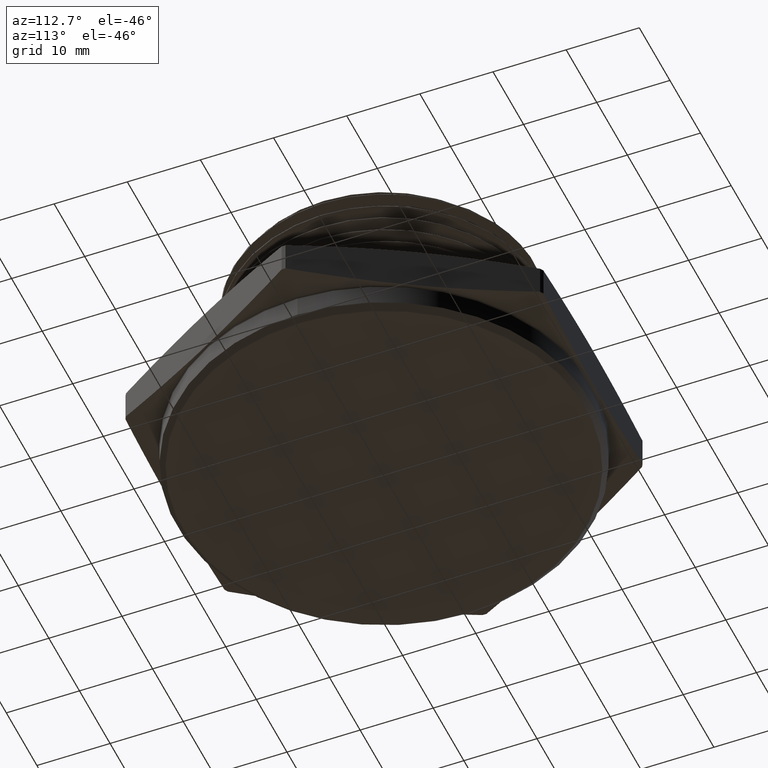
[diagram: clean part render]
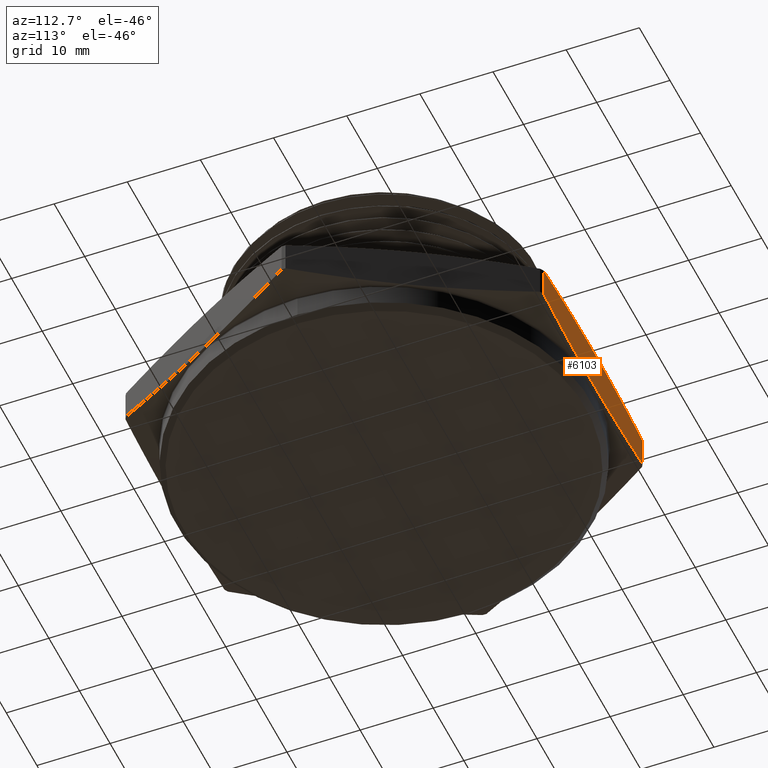
[diagram: same view with one face highlighted and labeled with its STEP entity id]
A machine part, auxiliary view. The second image highlights one B-rep face of the part: STEP entity #6103.
In plain terms, the highlighted planar face has unit normal (0, -1, 0).
Its self-contained STEP definition (entity closure, byte-faithful):
#199 = LINE ( 'NONE', #6695, #201 ) ;
#201 = VECTOR ( 'NONE', #6696, 39.37007874015748100 ) ;
#204 = LINE ( 'NONE', #6709, #207 ) ;
#207 = VECTOR ( 'NONE', #6710, 39.37007874015748100 ) ;
#247 = B_SPLINE_CURVE_WITH_KNOTS ( 'NONE', 3,
 ( #4721, #4722, #4726, #4727, #4728, #4729, #4730, #4731, #4732, #4733 ),
 .UNSPECIFIED., .F., .F.,
 ( 4, 2, 2, 2, 4 ),
 ( 0.02769100706627817800, 0.03581872669892850700, 0.04394644633157883400, 0.05207416596422916700, 0.06020188559687950100 ),
 .UNSPECIFIED. ) ;
#250 = B_SPLINE_CURVE_WITH_KNOTS ( 'NONE', 3,
 ( #4768, #4769, #4774, #4775, #4776, #4777, #4778, #4779, #4780, #4781 ),
 .UNSPECIFIED., .F., .F.,
 ( 4, 2, 2, 2, 4 ),
 ( 0.06266755112108940400, 0.07078731948426066100, 0.07890708784743191700, 0.08702685621060316000, 0.09514662457377441600 ),
 .UNSPECIFIED. ) ;
#832 = PLANE ( 'NONE',  #4649 ) ;
#833 = CARTESIAN_POINT ( 'NONE',  ( 0.6495190528383286700, 1.125000000000000200, 0.2399999999999999900 ) ) ;
#838 = DIRECTION ( 'NONE',  ( 0.0000000000000000000, -1.000000000000000000, 0.0000000000000000000 ) ) ;
#839 = DIRECTION ( 'NONE',  ( 0.0000000000000000000, -0.0000000000000000000, -1.000000000000000000 ) ) ;
#1003 = FACE_OUTER_BOUND ( 'NONE', #5999, .T. ) ;
#4182 = VERTEX_POINT ( 'NONE', #7625 ) ;
#4205 = VERTEX_POINT ( 'NONE', #7646 ) ;
#4208 = VERTEX_POINT ( 'NONE', #7649 ) ;
#4210 = VERTEX_POINT ( 'NONE', #7651 ) ;
#4350 = ORIENTED_EDGE ( 'NONE', *, *, #4524, .T. ) ;
#4351 = ORIENTED_EDGE ( 'NONE', *, *, #6046, .T. ) ;
#4352 = ORIENTED_EDGE ( 'NONE', *, *, #4514, .T. ) ;
#4353 = ORIENTED_EDGE ( 'NONE', *, *, #6043, .T. ) ;
#4514 = EDGE_CURVE ( 'NONE', #4208, #4210, #247, .T. ) ;
#4524 = EDGE_CURVE ( 'NONE', #4182, #4205, #250, .T. ) ;
#4649 = AXIS2_PLACEMENT_3D ( 'NONE', #833, #838, #839 ) ;
#4721 = CARTESIAN_POINT ( 'NONE',  ( -0.6374343438597271900, 1.124999999999999800, 0.2021568324111267000 ) ) ;
#4722 = CARTESIAN_POINT ( 'NONE',  ( -0.5312776202941625900, 1.125000000000000200, 0.2132804527460538700 ) ) ;
#4726 = CARTESIAN_POINT ( 'NONE',  ( -0.4247182803385509100, 1.125000000000000200, 0.2223289654415552500 ) ) ;
#4727 = CARTESIAN_POINT ( 'NONE',  ( -0.2119210197563303500, 1.125000000000000000, 0.2346437637095195600 ) ) ;
#4728 = CARTESIAN_POINT ( 'NONE',  ( -0.1055877381477456100, 1.125000000000000200, 0.2378878926551206700 ) ) ;
#4729 = CARTESIAN_POINT ( 'NONE',  ( 0.1069326787727581700, 1.125000000000000200, 0.2378608906701118700 ) ) ;
#4730 = CARTESIAN_POINT ( 'NONE',  ( 0.2131198371923395700, 1.125000000000000200, 0.2345907898882506100 ) ) ;
#4731 = CARTESIAN_POINT ( 'NONE',  ( 0.4253645999511002600, 1.125000000000000200, 0.2222750160309167600 ) ) ;
#4732 = CARTESIAN_POINT ( 'NONE',  ( 0.5314230090217723100, 1.125000000000000200, 0.2132652182045891000 ) ) ;
#4733 = CARTESIAN_POINT ( 'NONE',  ( 0.6374343438597271900, 1.124999999999999800, 0.2021568324111265600 ) ) ;
#4768 = CARTESIAN_POINT ( 'NONE',  ( 0.6374343438597271900, 1.124999999999999800, 0.03784316758887322500 ) ) ;
#4769 = CARTESIAN_POINT ( 'NONE',  ( 0.5314230090217724200, 1.125000000000000700, 0.02673478179541041000 ) ) ;
#4774 = CARTESIAN_POINT ( 'NONE',  ( 0.4253645999511000400, 1.125000000000000000, 0.01772498396908281700 ) ) ;
#4775 = CARTESIAN_POINT ( 'NONE',  ( 0.2131198371923395400, 1.125000000000000400, 0.005409210111748956700 ) ) ;
#4776 = CARTESIAN_POINT ( 'NONE',  ( 0.1069326787727582900, 1.125000000000000200, 0.002139109329887724100 ) ) ;
#4777 = CARTESIAN_POINT ( 'NONE',  ( -0.1055877381477456100, 1.125000000000000200, 0.002112107344879062600 ) ) ;
#4778 = CARTESIAN_POINT ( 'NONE',  ( -0.2119210197563309300, 1.125000000000000000, 0.005356236290480133300 ) ) ;
#4779 = CARTESIAN_POINT ( 'NONE',  ( -0.4247182803385515200, 1.124999999999999800, 0.01767103455844460900 ) ) ;
#4780 = CARTESIAN_POINT ( 'NONE',  ( -0.5312776202941622600, 1.124999999999999800, 0.02671954725394589900 ) ) ;
#4781 = CARTESIAN_POINT ( 'NONE',  ( -0.6374343438597271900, 1.124999999999999800, 0.03784316758887314200 ) ) ;
#5999 = EDGE_LOOP ( 'NONE', ( #4350, #4351, #4352, #4353 ) ) ;
#6043 = EDGE_CURVE ( 'NONE', #4210, #4182, #199, .T. ) ;
#6046 = EDGE_CURVE ( 'NONE', #4205, #4208, #204, .T. ) ;
#6103 = ADVANCED_FACE ( 'NONE', ( #1003 ), #832, .F. ) ;
#6695 = CARTESIAN_POINT ( 'NONE',  ( 0.6374343438597271900, 1.124999999999999800, -7.999715267468123000E-017 ) ) ;
#6696 = DIRECTION ( 'NONE',  ( -1.254986547952384500E-016, -0.0000000000000000000, -1.000000000000000000 ) ) ;
#6709 = CARTESIAN_POINT ( 'NONE',  ( -0.6374343438597271900, 1.124999999999999800, 7.999715267468123000E-017 ) ) ;
#6710 = DIRECTION ( 'NONE',  ( 1.254986547952384500E-016, 0.0000000000000000000, 1.000000000000000000 ) ) ;
#7625 = CARTESIAN_POINT ( 'NONE',  ( 0.6374343438597271900, 1.124999999999999800, 0.03784316758887322500 ) ) ;
#7646 = CARTESIAN_POINT ( 'NONE',  ( -0.6374343438597271900, 1.124999999999999800, 0.03784316758887314200 ) ) ;
#7649 = CARTESIAN_POINT ( 'NONE',  ( -0.6374343438597271900, 1.124999999999999800, 0.2021568324111267000 ) ) ;
#7651 = CARTESIAN_POINT ( 'NONE',  ( 0.6374343438597271900, 1.124999999999999800, 0.2021568324111265600 ) ) ;